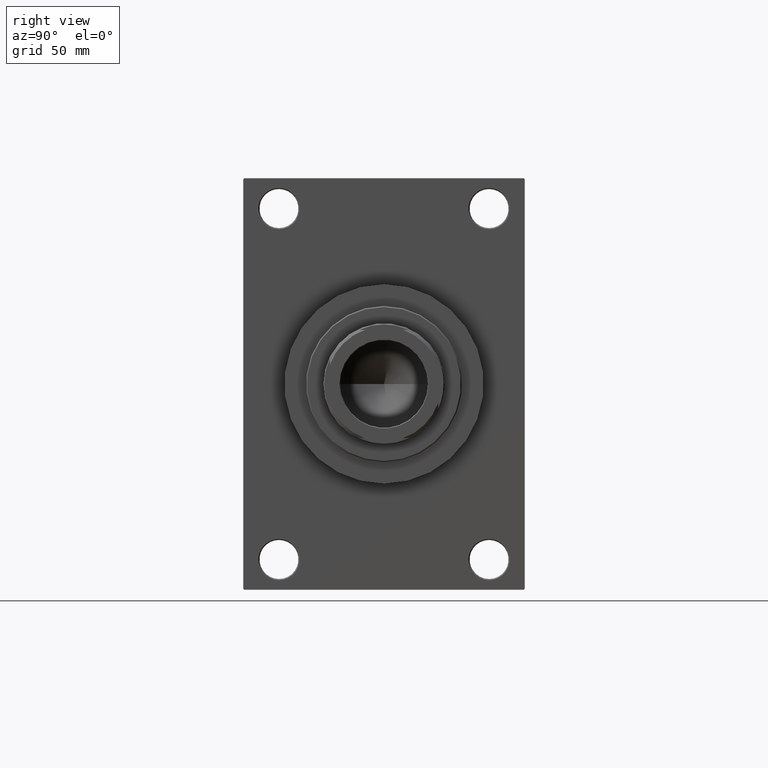
[diagram: clean part render]
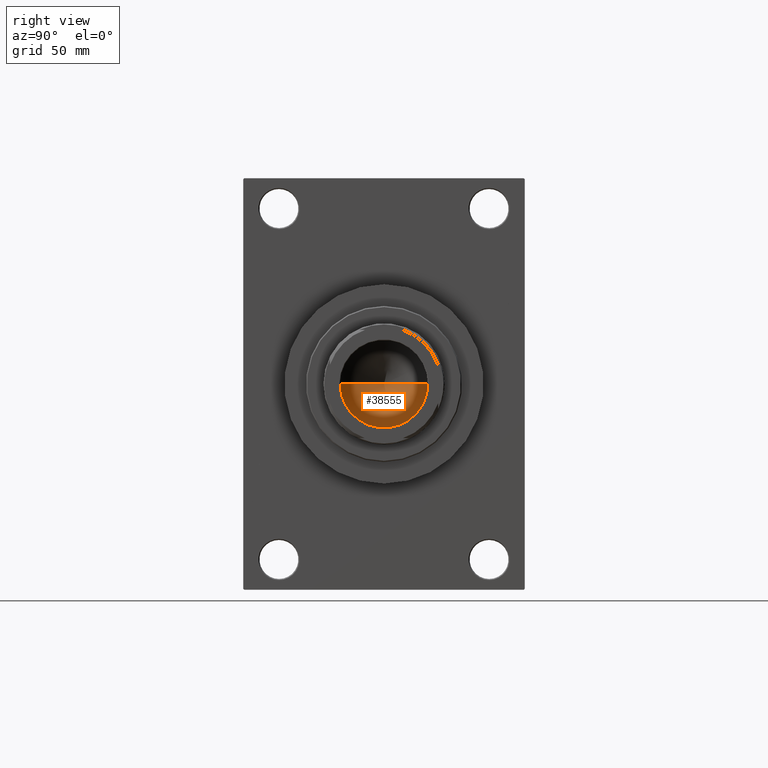
[diagram: same view with one face highlighted and labeled with its STEP entity id]
A machine part, right view. The second image highlights one B-rep face of the part: STEP entity #38555.
In plain terms, the highlighted conical surface has half-angle 59 deg.
Its self-contained STEP definition (entity closure, byte-faithful):
#652 = VERTEX_POINT ( 'NONE', #18809 ) ;
#1620 = EDGE_LOOP ( 'NONE', ( #27830, #16989, #11338 ) ) ;
#2179 = FACE_OUTER_BOUND ( 'NONE', #1620, .T. ) ;
#2409 = DIRECTION ( 'NONE',  ( -0.000000000000000000, -0.000000000000000000, 1.000000000000000000 ) ) ;
#2657 = DIRECTION ( 'NONE',  ( 1.000000000000000000, 0.000000000000000000, 0.000000000000000000 ) ) ;
#4260 = LINE ( 'NONE', #14435, #23042 ) ;
#5803 = CARTESIAN_POINT ( 'NONE',  ( -20.24999999999998934, 2.479909768273389117E-15, 121.0000000000000284 ) ) ;
#6443 = EDGE_CURVE ( 'NONE', #652, #11200, #32857, .T. ) ;
#10047 = CARTESIAN_POINT ( 'NONE',  ( -20.24999999999998934, 2.479909768273389117E-15, 121.0000000000000284 ) ) ;
#11200 = VERTEX_POINT ( 'NONE', #5803 ) ;
#11338 = ORIENTED_EDGE ( 'NONE', *, *, #6443, .T. ) ;
#14435 = CARTESIAN_POINT ( 'NONE',  ( 20.24999999999998934, 0.000000000000000000, 121.0000000000000284 ) ) ;
#16338 = VERTEX_POINT ( 'NONE', #17179 ) ;
#16989 = ORIENTED_EDGE ( 'NONE', *, *, #21251, .T. ) ;
#17179 = CARTESIAN_POINT ( 'NONE',  ( -1.584115414415908206E-14, 0.000000000000000000, 108.8325724646918928 ) ) ;
#18809 = CARTESIAN_POINT ( 'NONE',  ( 20.24999999999998934, 0.000000000000000000, 121.0000000000000284 ) ) ;
#20296 = CARTESIAN_POINT ( 'NONE',  ( 0.000000000000000000, 0.000000000000000000, 121.0000000000000284 ) ) ;
#20891 = LINE ( 'NONE', #10047, #21703 ) ;
#21251 = EDGE_CURVE ( 'NONE', #16338, #652, #4260, .T. ) ;
#21703 = VECTOR ( 'NONE', #24762, 1000.000000000000000 ) ;
#23042 = VECTOR ( 'NONE', #29393, 1000.000000000000000 ) ;
#23285 = DIRECTION ( 'NONE',  ( 1.000000000000000000, 0.000000000000000000, 0.000000000000000000 ) ) ;
#24762 = DIRECTION ( 'NONE',  ( -0.8571673007021115565, 1.049727191138617710E-16, 0.5150380749100554878 ) ) ;
#26752 = EDGE_CURVE ( 'NONE', #16338, #11200, #20891, .T. ) ;
#27830 = ORIENTED_EDGE ( 'NONE', *, *, #26752, .F. ) ;
#28137 = CONICAL_SURFACE ( 'NONE', #46606, 20.24999999999998934, 1.029744258676652979 ) ;
#29393 = DIRECTION ( 'NONE',  ( 0.8571673007021115565, 0.000000000000000000, 0.5150380749100554878 ) ) ;
#32857 = CIRCLE ( 'NONE', #42090, 20.24999999999998934 ) ;
#34844 = DIRECTION ( 'NONE',  ( -0.000000000000000000, -0.000000000000000000, 1.000000000000000000 ) ) ;
#38555 = ADVANCED_FACE ( 'NONE', ( #2179 ), #28137, .F. ) ;
#42090 = AXIS2_PLACEMENT_3D ( 'NONE', #44986, #34844, #23285 ) ;
#44986 = CARTESIAN_POINT ( 'NONE',  ( 0.000000000000000000, 0.000000000000000000, 121.0000000000000284 ) ) ;
#46606 = AXIS2_PLACEMENT_3D ( 'NONE', #20296, #2409, #2657 ) ;